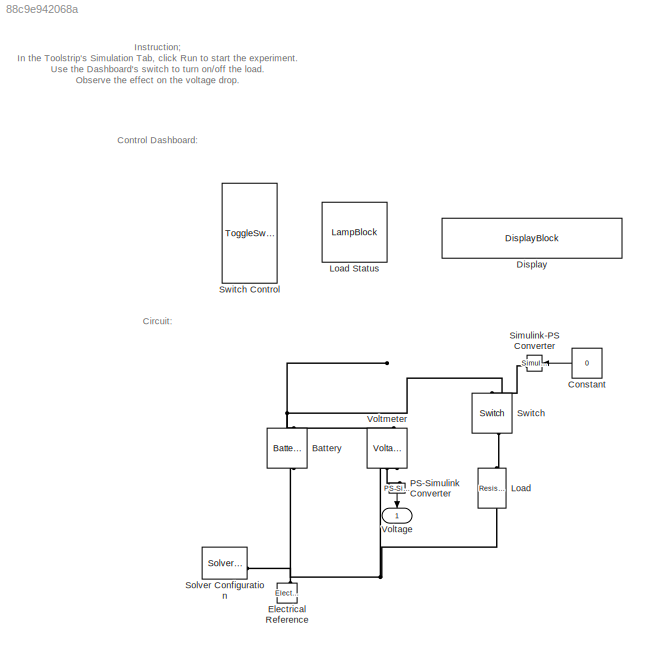
MODEL slx_88c9e942068a
KIND model
CONFIG AbsTol = auto
CONFIG EnableMultiTasking = off
CONFIG FixedStep = auto
CONFIG MaxStep = auto
CONFIG MinStep = auto
CONFIG RelTol = 1e-3
CONFIG SampleTimeConstraint = Unconstrained
CONFIG SolverName = VariableStepAuto
CONFIG StartTime = 0.0
CONFIG StopTime = Inf
BLOCK [Reference] Battery   REF=batteryecm_lib/Battery
  LibrarySourceBlock = ee_lib/Sources/Battery
  NameLocation = left
  SourceBlock = batteryecm_lib/Battery
  SourceType = Battery
BLOCK [Constant] Constant
  NameLocation = top
  Value = 0
BLOCK [DisplayBlock] Display
  Format = Custom
  FormatString = Voltage = %2.2f V
  LabelPosition = Hide
  Transparency = 1
BLOCK [Reference] Electrical Reference  REF=fl_lib/Electrical/Electrical Elements/Electrical Reference
  NameLocation = right
  SourceBlock = fl_lib/Electrical/Electrical Elements/Electrical Reference
  SourceType = Electrical Reference
BLOCK [Reference] Load  REF=fl_lib/Electrical/Electrical Elements/Resistor
  NameLocation = right
  SourceBlock = fl_lib/Electrical/Electrical Elements/Resistor
  SourceType = Resistor
BLOCK [LampBlock] Load Status
  LabelPosition = Hide
BLOCK [Reference] PS-Simulink Converter  REF=nesl_utility/PS-Simulink
Converter
  NameLocation = left
  SourceBlock = nesl_utility/PS-Simulink\nConverter
  SourceType = PS-Simulink\nConverter
BLOCK [Reference] Simulink-PS Converter  REF=nesl_utility/Simulink-PS
Converter
  NameLocation = top
  SourceBlock = nesl_utility/Simulink-PS\nConverter
  SourceType = Simulink-PS\nConverter
BLOCK [Reference] Solver Configuration  REF=nesl_utility/Solver
Configuration
  SourceBlock = nesl_utility/Solver\nConfiguration
  SourceType = Solver\nConfiguration
BLOCK [Reference] Switch   REF=fl_lib/Electrical/Electrical Elements/Switch
  NameLocation = right
  SourceBlock = fl_lib/Electrical/Electrical Elements/Switch
  SourceType = Switch
BLOCK [ToggleSwitchBlock] Switch Control
BLOCK [Outport] Voltage
  NameLocation = right
BLOCK [Reference] Voltmeter  REF=fl_lib/Electrical/Electrical Sensors/Voltage Sensor
  NameLocation = right
  SourceBlock = fl_lib/Electrical/Electrical Sensors/Voltage Sensor
  SourceType = Voltage Sensor
ANNOTATION (root): Instruction; In the Toolstrip 's Simulation Tab, click Run to start the experiment. Use the Dashboard's switch to turn on/off the load. Observe the effect on the voltage drop.
ANNOTATION (root): Circuit:
ANNOTATION (root): Control Dashboard:
LINE Constant:1 -> Simulink-PS Converter:1
LINE PS-Simulink Converter:1 -> Voltage:1
PNET net1: Battery :LConn1 -- Switch :RConn2 -- Voltmeter:LConn1
PNET net2: Battery :RConn1 -- Electrical Reference:LConn1 -- Load:RConn1 -- Solver Configuration:RConn1 -- Voltmeter:RConn2
PLINE Load:LConn1 -- Switch :LConn1
PLINE PS-Simulink Converter:LConn1 -- Voltmeter:RConn1
PLINE Simulink-PS Converter:RConn1 -- Switch :RConn1
note: PNET lines group multi-terminal physical nets as a canonical sorted terminal list (undirected conserving connections); 2-terminal nets keep the pairwise PLINE form
